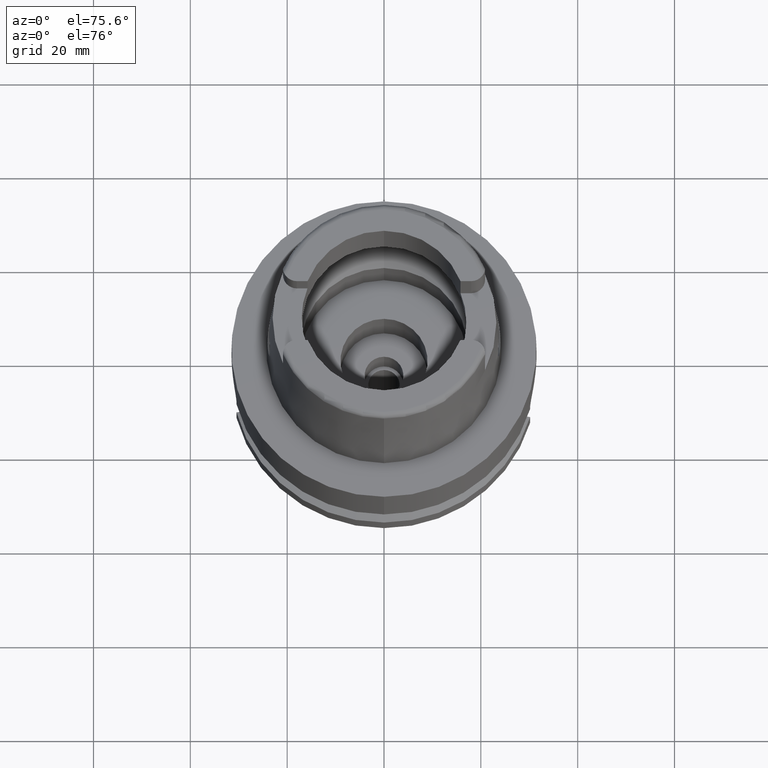
[diagram: clean part render]
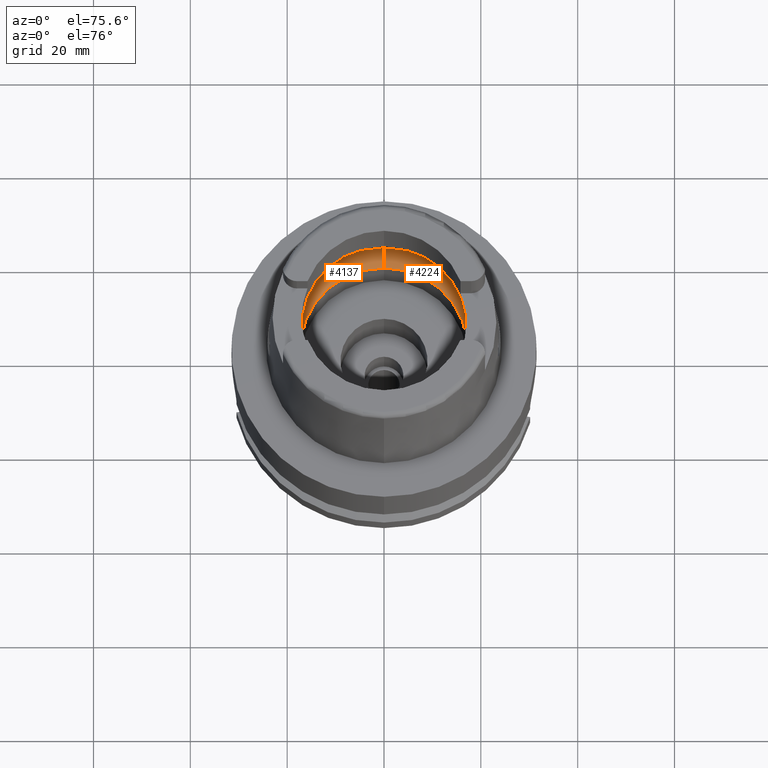
[diagram: same view with one multi-face feature highlighted, each face labeled with its STEP entity id]
A machine part, auxiliary view. The highlighted faces form ONE feature: a constant-radius fillet chain: 2 tangent blend faces with common blend radius 8 mm. The faces share edges in the B-rep.
Their STEP definitions:
[1] entity #4224 (Torus):
#2078=CARTESIAN_POINT('',(0.E0,-1.2E1,6.186348233825E0));
#2079=DIRECTION('',(-1.E0,0.E0,0.E0));
#2080=DIRECTION('',(0.E0,-6.5625E-1,-7.545435292281E-1));
#2081=AXIS2_PLACEMENT_3D('',#2078,#2079,#2080);
#2142=CARTESIAN_POINT('',(1.984575864666E1,-2.479085262491E0,6.186348233825E0));
#2171=CARTESIAN_POINT('',(1.984575864666E1,2.479085262491E0,6.186348233825E0));
#2190=CARTESIAN_POINT('',(1.994501428476E1,0.E0,5.25E0));
#2191=CARTESIAN_POINT('',(1.994501428476E1,-3.022112070238E-1,5.25E0));
#2192=CARTESIAN_POINT('',(1.994018885500E1,-9.058493638248E-1,
5.323260239915E0));
#2193=CARTESIAN_POINT('',(1.991332868849E1,-1.758887189824E0,5.646923722537E0));
#2194=CARTESIAN_POINT('',(1.987370750085E1,-2.255347005843E0,5.989214309372E0));
#2195=CARTESIAN_POINT('',(1.984575864666E1,-2.479085262491E0,6.186348233825E0));
#2200=CARTESIAN_POINT('',(0.E0,1.300407714777E-14,6.186348233825E0));
#2201=DIRECTION('',(0.E0,0.E0,-1.E0));
#2202=DIRECTION('',(9.922879323328E-1,-1.239542631245E-1,0.E0));
#2203=AXIS2_PLACEMENT_3D('',#2200,#2201,#2202);
#2208=CARTESIAN_POINT('',(0.E0,1.300407714777E-14,1.500000000001E-1));
#2209=DIRECTION('',(0.E0,0.E0,1.E0));
#2210=DIRECTION('',(0.E0,-1.E0,0.E0));
#2211=AXIS2_PLACEMENT_3D('',#2208,#2209,#2210);
#2216=CARTESIAN_POINT('',(0.E0,1.2E1,6.186348233825E0));
#2217=DIRECTION('',(1.E0,0.E0,0.E0));
#2218=DIRECTION('',(0.E0,6.5625E-1,-7.545435292281E-1));
#2219=AXIS2_PLACEMENT_3D('',#2216,#2217,#2218);
#2224=CARTESIAN_POINT('',(0.E0,1.300407714777E-14,6.186348233825E0));
#2225=DIRECTION('',(0.E0,0.E0,-1.E0));
#2226=DIRECTION('',(0.E0,1.E0,0.E0));
#2227=AXIS2_PLACEMENT_3D('',#2224,#2225,#2226);
#2232=CARTESIAN_POINT('',(1.984575864666E1,2.479085262491E0,6.186348233825E0));
#2233=CARTESIAN_POINT('',(1.987370791740E1,2.255343671189E0,5.989211371236E0));
#2234=CARTESIAN_POINT('',(1.991332922856E1,1.758878096065E0,5.646918222210E0));
#2235=CARTESIAN_POINT('',(1.994018908736E1,9.058345850410E-1,5.323256849204E0));
#2236=CARTESIAN_POINT('',(1.994501428476E1,3.022047592013E-1,5.25E0));
#2237=CARTESIAN_POINT('',(1.994501428476E1,0.E0,5.25E0));
#2541=CARTESIAN_POINT('',(0.E0,1.725E1,1.5E-1));
#2542=VERTEX_POINT('',#2541);
#2543=CARTESIAN_POINT('',(0.E0,-1.725E1,1.500000000001E-1));
#2544=VERTEX_POINT('',#2543);
#2548=CARTESIAN_POINT('',(0.E0,2.E1,6.186348233825E0));
#2549=VERTEX_POINT('',#2548);
#2550=CARTESIAN_POINT('',(0.E0,-2.E1,6.186348233825E0));
#2551=VERTEX_POINT('',#2550);
#2552=VERTEX_POINT('',#2142);
#2554=VERTEX_POINT('',#2190);
#2556=VERTEX_POINT('',#2171);
#4209=CARTESIAN_POINT('',(0.E0,1.300407714777E-14,6.186348233825E0));
#4210=DIRECTION('',(0.E0,0.E0,-1.E0));
#4211=DIRECTION('',(0.E0,-1.E0,0.E0));
#4212=AXIS2_PLACEMENT_3D('',#4209,#4210,#4211);
#4213=TOROIDAL_SURFACE('',#4212,1.2E1,8.E0);
#4214=ORIENTED_EDGE('',*,*,#4199,.T.);
#4215=ORIENTED_EDGE('',*,*,#4188,.T.);
#4216=ORIENTED_EDGE('',*,*,#4131,.F.);
#4217=ORIENTED_EDGE('',*,*,#4096,.T.);
#4218=ORIENTED_EDGE('',*,*,#4128,.T.);
#4219=ORIENTED_EDGE('',*,*,#4182,.T.);
#4221=ORIENTED_EDGE('',*,*,#4220,.T.);
#4222=EDGE_LOOP('',(#4214,#4215,#4216,#4217,#4218,#4219,#4221));
#4223=FACE_OUTER_BOUND('',#4222,.F.);
#2082=CIRCLE('',#2081,8.E0);
#2196=B_SPLINE_CURVE_WITH_KNOTS('',3,(#2190,#2191,#2192,#2193,#2194,#2195),
.UNSPECIFIED.,.F.,.F.,(4,1,1,4),(0.E0,3.333333333333E-1,6.666666666667E-1,1.E0),
.UNSPECIFIED.);
#2204=CIRCLE('',#2203,2.E1);
#2212=CIRCLE('',#2211,1.725E1);
#2220=CIRCLE('',#2219,8.E0);
#2228=CIRCLE('',#2227,2.E1);
#2238=B_SPLINE_CURVE_WITH_KNOTS('',3,(#2232,#2233,#2234,#2235,#2236,#2237),
.UNSPECIFIED.,.F.,.F.,(4,1,1,4),(0.E0,3.333333333333E-1,6.666666666667E-1,1.E0),
.UNSPECIFIED.);
#4096=EDGE_CURVE('',#2544,#2542,#2212,.T.);
#4128=EDGE_CURVE('',#2542,#2549,#2220,.T.);
#4131=EDGE_CURVE('',#2544,#2551,#2082,.T.);
#4182=EDGE_CURVE('',#2549,#2556,#2228,.T.);
#4188=EDGE_CURVE('',#2552,#2551,#2204,.T.);
#4199=EDGE_CURVE('',#2554,#2552,#2196,.T.);
#4220=EDGE_CURVE('',#2556,#2554,#2238,.T.);
#4224=ADVANCED_FACE('',(#4223),#4213,.F.);
[2] entity #4137 (Torus):
#2042=CARTESIAN_POINT('',(-1.984575864666E1,-2.479085262491E0,
6.186348233825E0));
#2043=CARTESIAN_POINT('',(-1.987370782659E1,-2.255344398160E0,
5.989212011764E0));
#2044=CARTESIAN_POINT('',(-1.991332908590E1,-1.758880025312E0,
5.646919634992E0));
#2045=CARTESIAN_POINT('',(-1.994018896865E1,-9.058411913828E-1,
5.323258516694E0));
#2046=CARTESIAN_POINT('',(-1.994501428476E1,-3.022076727851E-1,5.25E0));
#2047=CARTESIAN_POINT('',(-1.994501428476E1,0.E0,5.25E0));
#2052=CARTESIAN_POINT('',(-1.994501428476E1,0.E0,5.25E0));
#2053=CARTESIAN_POINT('',(-1.994501428476E1,3.022082865573E-1,5.25E0));
#2054=CARTESIAN_POINT('',(-1.994018897383E1,9.058427410399E-1,
5.323258570057E0));
#2055=CARTESIAN_POINT('',(-1.991332883264E1,1.758885230496E0,5.646922293853E0));
#2056=CARTESIAN_POINT('',(-1.987370759301E1,2.255346268023E0,5.989213659285E0));
#2057=CARTESIAN_POINT('',(-1.984575864666E1,2.479085262491E0,6.186348233825E0));
#2062=CARTESIAN_POINT('',(0.E0,1.300407714777E-14,6.186348233825E0));
#2063=DIRECTION('',(0.E0,0.E0,-1.E0));
#2064=DIRECTION('',(-9.922879323328E-1,1.239542631245E-1,0.E0));
#2065=AXIS2_PLACEMENT_3D('',#2062,#2063,#2064);
#2070=CARTESIAN_POINT('',(0.E0,1.300407714777E-14,1.500000000001E-1));
#2071=DIRECTION('',(0.E0,0.E0,1.E0));
#2072=DIRECTION('',(0.E0,1.E0,0.E0));
#2073=AXIS2_PLACEMENT_3D('',#2070,#2071,#2072);
#2078=CARTESIAN_POINT('',(0.E0,-1.2E1,6.186348233825E0));
#2079=DIRECTION('',(-1.E0,0.E0,0.E0));
#2080=DIRECTION('',(0.E0,-6.5625E-1,-7.545435292281E-1));
#2081=AXIS2_PLACEMENT_3D('',#2078,#2079,#2080);
#2086=CARTESIAN_POINT('',(0.E0,1.300407714777E-14,6.186348233825E0));
#2087=DIRECTION('',(0.E0,0.E0,-1.E0));
#2088=DIRECTION('',(0.E0,-1.E0,0.E0));
#2089=AXIS2_PLACEMENT_3D('',#2086,#2087,#2088);
#2216=CARTESIAN_POINT('',(0.E0,1.2E1,6.186348233825E0));
#2217=DIRECTION('',(1.E0,0.E0,0.E0));
#2218=DIRECTION('',(0.E0,6.5625E-1,-7.545435292281E-1));
#2219=AXIS2_PLACEMENT_3D('',#2216,#2217,#2218);
#2541=CARTESIAN_POINT('',(0.E0,1.725E1,1.5E-1));
#2542=VERTEX_POINT('',#2541);
#2543=CARTESIAN_POINT('',(0.E0,-1.725E1,1.500000000001E-1));
#2544=VERTEX_POINT('',#2543);
#2545=VERTEX_POINT('',#2042);
#2546=VERTEX_POINT('',#2047);
#2547=VERTEX_POINT('',#2057);
#2548=CARTESIAN_POINT('',(0.E0,2.E1,6.186348233825E0));
#2549=VERTEX_POINT('',#2548);
#2550=CARTESIAN_POINT('',(0.E0,-2.E1,6.186348233825E0));
#2551=VERTEX_POINT('',#2550);
#4117=CARTESIAN_POINT('',(0.E0,1.300407714777E-14,6.186348233825E0));
#4118=DIRECTION('',(0.E0,0.E0,-1.E0));
#4119=DIRECTION('',(0.E0,-1.E0,0.E0));
#4120=AXIS2_PLACEMENT_3D('',#4117,#4118,#4119);
#4121=TOROIDAL_SURFACE('',#4120,1.2E1,8.E0);
#4123=ORIENTED_EDGE('',*,*,#4122,.T.);
#4125=ORIENTED_EDGE('',*,*,#4124,.T.);
#4127=ORIENTED_EDGE('',*,*,#4126,.T.);
#4129=ORIENTED_EDGE('',*,*,#4128,.F.);
#4130=ORIENTED_EDGE('',*,*,#4112,.T.);
#4132=ORIENTED_EDGE('',*,*,#4131,.T.);
#4134=ORIENTED_EDGE('',*,*,#4133,.T.);
#4135=EDGE_LOOP('',(#4123,#4125,#4127,#4129,#4130,#4132,#4134));
#4136=FACE_OUTER_BOUND('',#4135,.F.);
#2048=B_SPLINE_CURVE_WITH_KNOTS('',3,(#2042,#2043,#2044,#2045,#2046,#2047),
.UNSPECIFIED.,.F.,.F.,(4,1,1,4),(0.E0,3.333333333333E-1,6.666666666667E-1,1.E0),
.UNSPECIFIED.);
#2058=B_SPLINE_CURVE_WITH_KNOTS('',3,(#2052,#2053,#2054,#2055,#2056,#2057),
.UNSPECIFIED.,.F.,.F.,(4,1,1,4),(0.E0,3.333333333333E-1,6.666666666667E-1,1.E0),
.UNSPECIFIED.);
#2066=CIRCLE('',#2065,2.E1);
#2074=CIRCLE('',#2073,1.725E1);
#2082=CIRCLE('',#2081,8.E0);
#2090=CIRCLE('',#2089,2.E1);
#2220=CIRCLE('',#2219,8.E0);
#4112=EDGE_CURVE('',#2542,#2544,#2074,.T.);
#4122=EDGE_CURVE('',#2545,#2546,#2048,.T.);
#4124=EDGE_CURVE('',#2546,#2547,#2058,.T.);
#4126=EDGE_CURVE('',#2547,#2549,#2066,.T.);
#4128=EDGE_CURVE('',#2542,#2549,#2220,.T.);
#4131=EDGE_CURVE('',#2544,#2551,#2082,.T.);
#4133=EDGE_CURVE('',#2551,#2545,#2090,.T.);
#4137=ADVANCED_FACE('',(#4136),#4121,.F.);